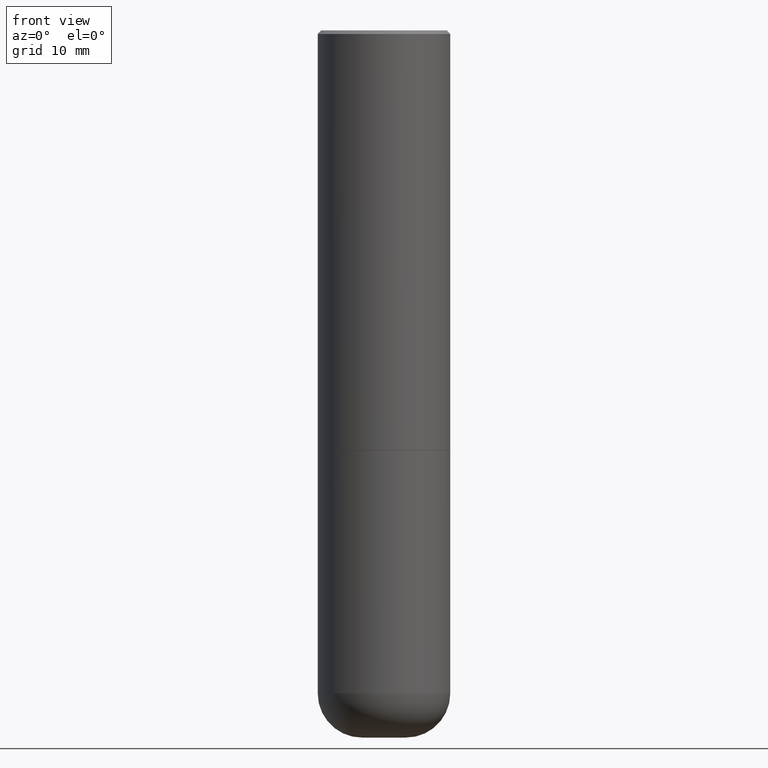
[diagram: clean part render]
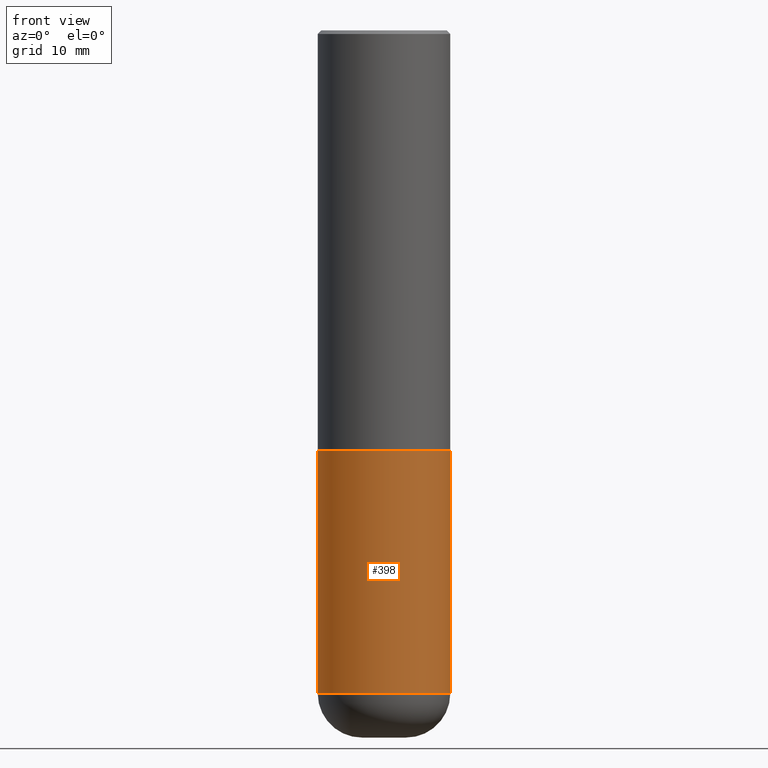
[diagram: same view with one face highlighted and labeled with its STEP entity id]
A machine part, front view. The second image highlights one B-rep face of the part: STEP entity #398.
In plain terms, the highlighted cylindrical surface (partial cylindrical patch) has radius 9.525 mm, axis along (-0, 0, 1).
Its self-contained STEP definition (entity closure, byte-faithful):
#11 = ORIENTED_EDGE ( 'NONE', *, *, #36, .F. ) ;
#21 = ORIENTED_EDGE ( 'NONE', *, *, #349, .F. ) ;
#35 = CARTESIAN_POINT ( 'NONE',  ( 0.3749999999999999445, -2.618611004132349622E-15, 1.828566290923475642E-29 ) ) ;
#36 = EDGE_CURVE ( 'NONE', #158, #200, #213, .T. ) ;
#61 = DIRECTION ( 'NONE',  ( 1.000000000000000000, -6.982962677686266711E-15, 0.000000000000000000 ) ) ;
#80 = VECTOR ( 'NONE', #314, 39.37007874015748143 ) ;
#120 = AXIS2_PLACEMENT_3D ( 'NONE', #245, #207, #277 ) ;
#126 = CARTESIAN_POINT ( 'NONE',  ( 0.000000000000000000, 0.000000000000000000, 0.000000000000000000 ) ) ;
#147 = CARTESIAN_POINT ( 'NONE',  ( 0.3749999999999999445, -1.571169926102186224E-14, -3.750009519233956645 ) ) ;
#158 = VERTEX_POINT ( 'NONE', #423 ) ;
#161 = FACE_OUTER_BOUND ( 'NONE', #397, .T. ) ;
#170 = ORIENTED_EDGE ( 'NONE', *, *, #303, .T. ) ;
#191 = CARTESIAN_POINT ( 'NONE',  ( -0.3749999999999999445, -8.028142959220617840E-15, -3.750009519233956645 ) ) ;
#197 = VECTOR ( 'NONE', #256, 39.37007874015748143 ) ;
#200 = VERTEX_POINT ( 'NONE', #382 ) ;
#204 = ORIENTED_EDGE ( 'NONE', *, *, #439, .T. ) ;
#206 = VERTEX_POINT ( 'NONE', #191 ) ;
#207 = DIRECTION ( 'NONE',  ( -2.445468806185136597E-29, 3.491481338843145583E-15, 1.000000000000000000 ) ) ;
#213 = CIRCLE ( 'NONE', #492, 0.3750000000000000555 ) ;
#235 = LINE ( 'NONE', #394, #80 ) ;
#239 = VERTEX_POINT ( 'NONE', #147 ) ;
#245 = CARTESIAN_POINT ( 'NONE',  ( 9.170531302183962062E-29, -1.309308825688951538E-14, -3.750009519233956645 ) ) ;
#256 = DIRECTION ( 'NONE',  ( -2.445468806185136877E-29, 3.491481338843145188E-15, 1.000000000000000000 ) ) ;
#277 = DIRECTION ( 'NONE',  ( 1.000000000000000000, -6.982962677686263555E-15, 0.000000000000000000 ) ) ;
#284 = DIRECTION ( 'NONE',  ( 1.000000000000000000, -6.982962677686266711E-15, 4.876176775795935793E-29 ) ) ;
#290 = CIRCLE ( 'NONE', #120, 0.3749999999999999445 ) ;
#303 = EDGE_CURVE ( 'NONE', #239, #200, #413, .T. ) ;
#314 = DIRECTION ( 'NONE',  ( -2.445468806185136877E-29, 3.491481338843145188E-15, 1.000000000000000000 ) ) ;
#320 = CYLINDRICAL_SURFACE ( 'NONE', #415, 0.3749999999999999445 ) ;
#349 = EDGE_CURVE ( 'NONE', #206, #158, #235, .T. ) ;
#371 = CARTESIAN_POINT ( 'NONE',  ( 5.807988414689699417E-29, -8.292268179752470118E-15, -2.375000000000000000 ) ) ;
#374 = DIRECTION ( 'NONE',  ( -2.445468806185136597E-29, 3.491481338843145583E-15, 1.000000000000000000 ) ) ;
#382 = CARTESIAN_POINT ( 'NONE',  ( 0.3750000000000000555, -1.091087918388482013E-14, -2.375000000000000000 ) ) ;
#394 = CARTESIAN_POINT ( 'NONE',  ( -0.3749999999999999445, 2.664535259100375303E-15, -1.844600658845589318E-29 ) ) ;
#397 = EDGE_LOOP ( 'NONE', ( #21, #204, #170, #11 ) ) ;
#398 = ADVANCED_FACE ( 'NONE', ( #161 ), #320, .T. ) ;
#413 = LINE ( 'NONE', #35, #197 ) ;
#415 = AXIS2_PLACEMENT_3D ( 'NONE', #126, #467, #284 ) ;
#423 = CARTESIAN_POINT ( 'NONE',  ( -0.3750000000000000555, -8.028142959220617840E-15, -2.375000000000000000 ) ) ;
#439 = EDGE_CURVE ( 'NONE', #206, #239, #290, .T. ) ;
#467 = DIRECTION ( 'NONE',  ( -2.445468806185136597E-29, 3.491481338843145583E-15, 1.000000000000000000 ) ) ;
#492 = AXIS2_PLACEMENT_3D ( 'NONE', #371, #374, #61 ) ;